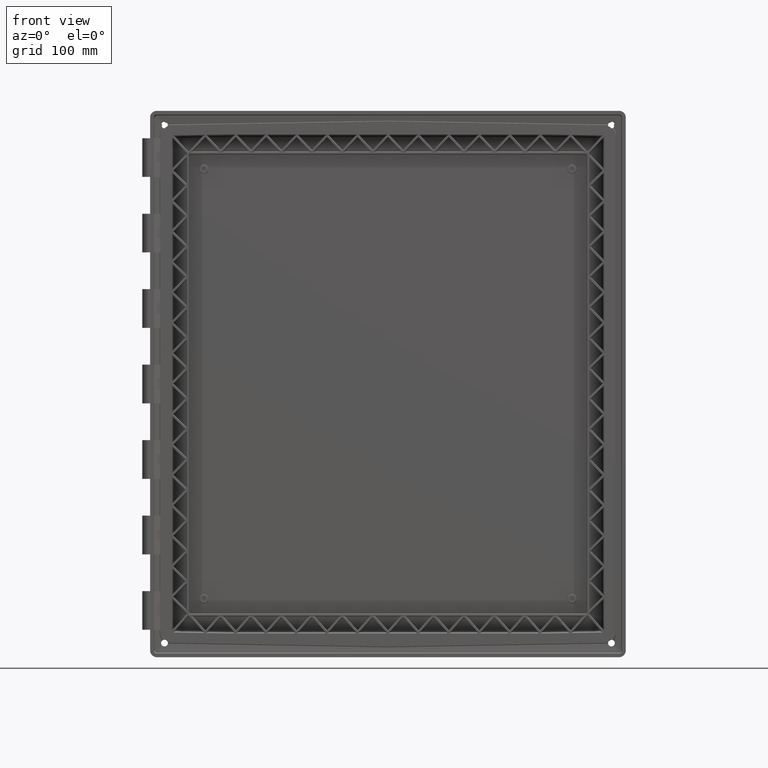
[diagram: clean part render]
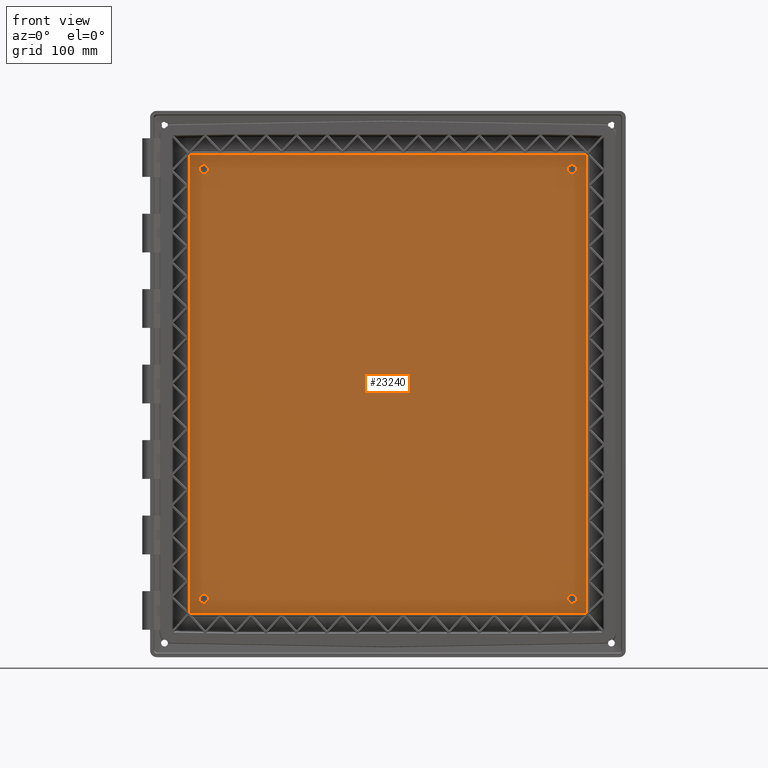
[diagram: same view with one face highlighted and labeled with its STEP entity id]
A machine part, front view. The second image highlights one B-rep face of the part: STEP entity #23240.
In plain terms, the highlighted planar face has unit normal (0, 1, 0).
Its self-contained STEP definition (entity closure, byte-faithful):
#11894 = CARTESIAN_POINT ( 'NONE',  ( 164.5317312209668600, 30.40000000000000200, 189.0218835258104700 ) ) ;
#11895 = CARTESIAN_POINT ( 'NONE',  ( 164.5317312209668600, 30.40000000000000200, -189.0218835258104700 ) ) ;
#11896 = DIRECTION ( 'NONE',  ( -0.0000000000000000000, -0.0000000000000000000, 1.000000000000000000 ) ) ;
#11897 = VECTOR ( 'NONE', #11896, 1000.000000000000000 ) ;
#11898 = CARTESIAN_POINT ( 'NONE',  ( 164.5317312209668600, 30.40000000000000200, 190.5000000000000000 ) ) ;
#11899 = LINE ( 'NONE', #11898, #11897 ) ;
#11910 = CARTESIAN_POINT ( 'NONE',  ( -163.5318835258104600, 30.40000000000000200, 190.0217312209668100 ) ) ;
#11911 = CARTESIAN_POINT ( 'NONE',  ( 163.5318835258105400, 30.40000000000000200, 190.0217312209668100 ) ) ;
#11912 = DIRECTION ( 'NONE',  ( -1.000000000000000000, -0.0000000000000000000, -0.0000000000000000000 ) ) ;
#11913 = VECTOR ( 'NONE', #11912, 1000.000000000000000 ) ;
#11914 = CARTESIAN_POINT ( 'NONE',  ( -165.0100000000000500, 30.40000000000000200, 190.0217312209668100 ) ) ;
#11918 = LINE ( 'NONE', #11914, #11913 ) ;
#11965 = CARTESIAN_POINT ( 'NONE',  ( -164.5317312209668600, 30.40000000000000200, 189.0218835258104400 ) ) ;
#11966 = DIRECTION ( 'NONE',  ( 0.0000000000000000000, -0.0000000000000000000, -1.000000000000000000 ) ) ;
#11967 = VECTOR ( 'NONE', #11966, 1000.000000000000000 ) ;
#11968 = CARTESIAN_POINT ( 'NONE',  ( -164.5317312209668600, 30.40000000000000200, 190.5000000000000000 ) ) ;
#11969 = LINE ( 'NONE', #11968, #11967 ) ;
#11970 = CARTESIAN_POINT ( 'NONE',  ( -164.5317312209668600, 30.40000000000000200, -189.0218835258104100 ) ) ;
#12003 = CARTESIAN_POINT ( 'NONE',  ( 163.5318835258104300, 30.40000000000000200, -190.0217312209668100 ) ) ;
#12004 = CARTESIAN_POINT ( 'NONE',  ( -163.5318835258104600, 30.40000000000000200, -190.0217312209668100 ) ) ;
#12005 = DIRECTION ( 'NONE',  ( 1.000000000000000000, -0.0000000000000000000, -0.0000000000000000000 ) ) ;
#12006 = VECTOR ( 'NONE', #12005, 1000.000000000000000 ) ;
#12007 = CARTESIAN_POINT ( 'NONE',  ( -165.0100000000000500, 30.40000000000000200, -190.0217312209668100 ) ) ;
#12008 = LINE ( 'NONE', #12007, #12006 ) ;
#12182 = DIRECTION ( 'NONE',  ( 0.0000000000000000000, 0.0000000000000000000, 1.000000000000000000 ) ) ;
#12183 = DIRECTION ( 'NONE',  ( -0.0000000000000000000, -1.000000000000000000, -0.0000000000000000000 ) ) ;
#12184 = CARTESIAN_POINT ( 'NONE',  ( 152.3999999999999500, 30.40000000000000200, 177.8000000000000100 ) ) ;
#12185 = AXIS2_PLACEMENT_3D ( 'NONE', #12184, #12183, #12182 ) ;
#12190 = CIRCLE ( 'NONE', #12185, 3.750000000000003600 ) ;
#12249 = CARTESIAN_POINT ( 'NONE',  ( -164.5317312209668600, 30.40000000000000200, 189.0218835258104400 ) ) ;
#12250 = CARTESIAN_POINT ( 'NONE',  ( -164.5317312209668600, 30.40000000000000600, 189.6076176861269300 ) ) ;
#12251 = CARTESIAN_POINT ( 'NONE',  ( -164.1176176861269500, 30.40000000000000600, 190.0217312209668700 ) ) ;
#12252 = CARTESIAN_POINT ( 'NONE',  ( -163.5318835258104600, 30.40000000000000200, 190.0217312209668100 ) ) ;
#12253 =( BOUNDED_CURVE ( )  B_SPLINE_CURVE ( 3, ( #12252, #12251, #12250, #12249 ),
 .UNSPECIFIED., .F., .T. ) 
 B_SPLINE_CURVE_WITH_KNOTS ( ( 4, 4 ),
 ( 2.356346783439908300, 3.926838523739677900 ),
 .UNSPECIFIED. ) 
 CURVE ( )  GEOMETRIC_REPRESENTATION_ITEM ( )  RATIONAL_B_SPLINE_CURVE ( ( 1.000000000000000000, 0.8048096403827773600, 0.8048096403827773600, 1.000000000000000000 ) ) 
 REPRESENTATION_ITEM ( '' )  );
#12263 =( BOUNDED_CURVE ( )  B_SPLINE_CURVE ( 3, ( #12303, #12302, #12301, #12300 ),
 .UNSPECIFIED., .F., .T. ) 
 B_SPLINE_CURVE_WITH_KNOTS ( ( 4, 4 ),
 ( 2.356346783439935900, 3.926838523739650400 ),
 .UNSPECIFIED. ) 
 CURVE ( )  GEOMETRIC_REPRESENTATION_ITEM ( )  RATIONAL_B_SPLINE_CURVE ( ( 1.000000000000000000, 0.8048096403827902400, 0.8048096403827902400, 1.000000000000000000 ) ) 
 REPRESENTATION_ITEM ( '' )  );
#12264 = CARTESIAN_POINT ( 'NONE',  ( 164.5317312209668600, 30.40000000000000200, -189.0218835258104700 ) ) ;
#12265 = CARTESIAN_POINT ( 'NONE',  ( 164.5317312209668300, 30.39999999999999900, -189.6076176861269600 ) ) ;
#12266 = CARTESIAN_POINT ( 'NONE',  ( 164.1176176861269800, 30.39999999999999900, -190.0217312209669000 ) ) ;
#12267 = CARTESIAN_POINT ( 'NONE',  ( 163.5318835258104300, 30.40000000000000200, -190.0217312209668100 ) ) ;
#12268 =( BOUNDED_CURVE ( )  B_SPLINE_CURVE ( 3, ( #12267, #12266, #12265, #12264 ),
 .UNSPECIFIED., .F., .T. ) 
 B_SPLINE_CURVE_WITH_KNOTS ( ( 4, 4 ),
 ( 2.356346783439880400, 3.926838523739677900 ),
 .UNSPECIFIED. ) 
 CURVE ( )  GEOMETRIC_REPRESENTATION_ITEM ( )  RATIONAL_B_SPLINE_CURVE ( ( 1.000000000000000000, 0.8048096403827707000, 0.8048096403827707000, 1.000000000000000000 ) ) 
 REPRESENTATION_ITEM ( '' )  );
#12269 = CARTESIAN_POINT ( 'NONE',  ( -163.5318835258104600, 30.40000000000000200, -190.0217312209668100 ) ) ;
#12270 = CARTESIAN_POINT ( 'NONE',  ( -164.1176176861270100, 30.39999999999999900, -190.0217312209668100 ) ) ;
#12271 = CARTESIAN_POINT ( 'NONE',  ( -164.5317312209668900, 30.39999999999999900, -189.6076176861269300 ) ) ;
#12272 = CARTESIAN_POINT ( 'NONE',  ( -164.5317312209668600, 30.40000000000000200, -189.0218835258104100 ) ) ;
#12273 =( BOUNDED_CURVE ( )  B_SPLINE_CURVE ( 3, ( #12272, #12271, #12270, #12269 ),
 .UNSPECIFIED., .F., .F. ) 
 B_SPLINE_CURVE_WITH_KNOTS ( ( 4, 4 ),
 ( 2.356346783439880400, 3.926838523739677900 ),
 .UNSPECIFIED. ) 
 CURVE ( )  GEOMETRIC_REPRESENTATION_ITEM ( )  RATIONAL_B_SPLINE_CURVE ( ( 1.000000000000000000, 0.8048096403827707000, 0.8048096403827707000, 1.000000000000000000 ) ) 
 REPRESENTATION_ITEM ( '' )  );
#12274 = DIRECTION ( 'NONE',  ( 0.0000000000000000000, -0.0000000000000000000, 1.000000000000000000 ) ) ;
#12275 = DIRECTION ( 'NONE',  ( 0.0000000000000000000, 1.000000000000000000, 0.0000000000000000000 ) ) ;
#12276 = AXIS2_PLACEMENT_3D ( 'NONE', #12277, #12275, #12274 ) ;
#12277 = CARTESIAN_POINT ( 'NONE',  ( -182.5000000000000000, 30.40000000000000200, 210.0000000000000000 ) ) ;
#12278 = PLANE ( 'NONE',  #12276 ) ;
#12279 = FACE_BOUND ( 'NONE', #23216, .T. ) ;
#12280 = FACE_BOUND ( 'NONE', #23213, .T. ) ;
#12281 = FACE_BOUND ( 'NONE', #23210, .T. ) ;
#12282 = FACE_OUTER_BOUND ( 'NONE', #23243, .T. ) ;
#12283 = FACE_BOUND ( 'NONE', #23241, .T. ) ;
#12284 = DIRECTION ( 'NONE',  ( 0.0000000000000000000, 0.0000000000000000000, 1.000000000000000000 ) ) ;
#12285 = DIRECTION ( 'NONE',  ( -0.0000000000000000000, -1.000000000000000000, -0.0000000000000000000 ) ) ;
#12286 = CARTESIAN_POINT ( 'NONE',  ( -152.4000000000000600, 30.40000000000000200, 177.7999999999999500 ) ) ;
#12287 = AXIS2_PLACEMENT_3D ( 'NONE', #12286, #12285, #12284 ) ;
#12292 = CIRCLE ( 'NONE', #12287, 3.750000000000003600 ) ;
#12295 = DIRECTION ( 'NONE',  ( 0.0000000000000000000, 0.0000000000000000000, 1.000000000000000000 ) ) ;
#12296 = DIRECTION ( 'NONE',  ( -0.0000000000000000000, -1.000000000000000000, -0.0000000000000000000 ) ) ;
#12297 = CARTESIAN_POINT ( 'NONE',  ( 152.3999999999999500, 30.40000000000000200, -177.8000000000000100 ) ) ;
#12298 = AXIS2_PLACEMENT_3D ( 'NONE', #12297, #12296, #12295 ) ;
#12299 = CIRCLE ( 'NONE', #12298, 3.750000000000003600 ) ;
#12300 = CARTESIAN_POINT ( 'NONE',  ( 163.5318835258105400, 30.40000000000000200, 190.0217312209668100 ) ) ;
#12301 = CARTESIAN_POINT ( 'NONE',  ( 164.1176176861270100, 30.40000000000000200, 190.0217312209668100 ) ) ;
#12302 = CARTESIAN_POINT ( 'NONE',  ( 164.5317312209668900, 30.40000000000000200, 189.6076176861269300 ) ) ;
#12303 = CARTESIAN_POINT ( 'NONE',  ( 164.5317312209668600, 30.40000000000000200, 189.0218835258104700 ) ) ;
#12332 = DIRECTION ( 'NONE',  ( 0.0000000000000000000, 0.0000000000000000000, 1.000000000000000000 ) ) ;
#12333 = DIRECTION ( 'NONE',  ( -0.0000000000000000000, -1.000000000000000000, -0.0000000000000000000 ) ) ;
#12334 = CARTESIAN_POINT ( 'NONE',  ( -152.3999999999998900, 30.40000000000000200, -177.8000000000000400 ) ) ;
#12335 = AXIS2_PLACEMENT_3D ( 'NONE', #12334, #12333, #12332 ) ;
#12336 = CIRCLE ( 'NONE', #12335, 3.750000000000003600 ) ;
#17382 = VERTEX_POINT ( 'NONE', #28995 ) ;
#17385 = VERTEX_POINT ( 'NONE', #28992 ) ;
#17387 = VERTEX_POINT ( 'NONE', #28987 ) ;
#17389 = EDGE_CURVE ( 'NONE', #17461, #17385, #28986, .T. ) ;
#17396 = VERTEX_POINT ( 'NONE', #28974 ) ;
#17402 = VERTEX_POINT ( 'NONE', #29025 ) ;
#17406 = EDGE_CURVE ( 'NONE', #17402, #17396, #29019, .T. ) ;
#17441 = EDGE_CURVE ( 'NONE', #17387, #17459, #29088, .T. ) ;
#17442 = VERTEX_POINT ( 'NONE', #29083 ) ;
#17459 = VERTEX_POINT ( 'NONE', #29117 ) ;
#17460 = EDGE_CURVE ( 'NONE', #17382, #17442, #29116, .T. ) ;
#17461 = VERTEX_POINT ( 'NONE', #29111 ) ;
#22982 = EDGE_CURVE ( 'NONE', #22983, #22984, #11899, .T. ) ;
#22983 = VERTEX_POINT ( 'NONE', #11895 ) ;
#22984 = VERTEX_POINT ( 'NONE', #11894 ) ;
#23001 = EDGE_CURVE ( 'NONE', #23002, #23003, #11918, .T. ) ;
#23002 = VERTEX_POINT ( 'NONE', #11911 ) ;
#23003 = VERTEX_POINT ( 'NONE', #11910 ) ;
#23028 = VERTEX_POINT ( 'NONE', #11970 ) ;
#23030 = EDGE_CURVE ( 'NONE', #23031, #23028, #11969, .T. ) ;
#23031 = VERTEX_POINT ( 'NONE', #11965 ) ;
#23042 = EDGE_CURVE ( 'NONE', #23043, #23044, #12008, .T. ) ;
#23043 = VERTEX_POINT ( 'NONE', #12004 ) ;
#23044 = VERTEX_POINT ( 'NONE', #12003 ) ;
#23174 = EDGE_CURVE ( 'NONE', #17459, #17387, #12190, .T. ) ;
#23207 = ORIENTED_EDGE ( 'NONE', *, *, #23001, .T. ) ;
#23208 = ORIENTED_EDGE ( 'NONE', *, *, #23209, .T. ) ;
#23209 = EDGE_CURVE ( 'NONE', #23003, #23031, #12253, .T. ) ;
#23210 = EDGE_LOOP ( 'NONE', ( #23211, #23212 ) ) ;
#23211 = ORIENTED_EDGE ( 'NONE', *, *, #23244, .F. ) ;
#23212 = ORIENTED_EDGE ( 'NONE', *, *, #17389, .F. ) ;
#23213 = EDGE_LOOP ( 'NONE', ( #23214, #23215 ) ) ;
#23214 = ORIENTED_EDGE ( 'NONE', *, *, #23174, .F. ) ;
#23215 = ORIENTED_EDGE ( 'NONE', *, *, #17441, .F. ) ;
#23216 = EDGE_LOOP ( 'NONE', ( #23217, #23218 ) ) ;
#23217 = ORIENTED_EDGE ( 'NONE', *, *, #23239, .F. ) ;
#23218 = ORIENTED_EDGE ( 'NONE', *, *, #17406, .F. ) ;
#23220 = ORIENTED_EDGE ( 'NONE', *, *, #17460, .F. ) ;
#23221 = ORIENTED_EDGE ( 'NONE', *, *, #23030, .T. ) ;
#23222 = ORIENTED_EDGE ( 'NONE', *, *, #23223, .T. ) ;
#23223 = EDGE_CURVE ( 'NONE', #23028, #23043, #12273, .T. ) ;
#23224 = ORIENTED_EDGE ( 'NONE', *, *, #23042, .T. ) ;
#23225 = ORIENTED_EDGE ( 'NONE', *, *, #23226, .T. ) ;
#23226 = EDGE_CURVE ( 'NONE', #23044, #22983, #12268, .T. ) ;
#23227 = ORIENTED_EDGE ( 'NONE', *, *, #22982, .T. ) ;
#23228 = ORIENTED_EDGE ( 'NONE', *, *, #23229, .T. ) ;
#23229 = EDGE_CURVE ( 'NONE', #22984, #23002, #12263, .T. ) ;
#23232 = EDGE_CURVE ( 'NONE', #17442, #17382, #12299, .T. ) ;
#23239 = EDGE_CURVE ( 'NONE', #17396, #17402, #12292, .T. ) ;
#23240 = ADVANCED_FACE ( 'NONE', ( #12283, #12282, #12281, #12280, #12279 ), #12278, .F. ) ;
#23241 = EDGE_LOOP ( 'NONE', ( #23242, #23220 ) ) ;
#23242 = ORIENTED_EDGE ( 'NONE', *, *, #23232, .F. ) ;
#23243 = EDGE_LOOP ( 'NONE', ( #23221, #23222, #23224, #23225, #23227, #23228, #23207, #23208 ) ) ;
#23244 = EDGE_CURVE ( 'NONE', #17385, #17461, #12336, .T. ) ;
#28974 = CARTESIAN_POINT ( 'NONE',  ( -152.4000000000000600, 30.40000000000000200, 174.0499999999999500 ) ) ;
#28982 = DIRECTION ( 'NONE',  ( 0.0000000000000000000, 0.0000000000000000000, 1.000000000000000000 ) ) ;
#28983 = DIRECTION ( 'NONE',  ( -0.0000000000000000000, -1.000000000000000000, -0.0000000000000000000 ) ) ;
#28984 = CARTESIAN_POINT ( 'NONE',  ( -152.3999999999998900, 30.40000000000000200, -177.8000000000000400 ) ) ;
#28985 = AXIS2_PLACEMENT_3D ( 'NONE', #28984, #28983, #28982 ) ;
#28986 = CIRCLE ( 'NONE', #28985, 3.750000000000003600 ) ;
#28987 = CARTESIAN_POINT ( 'NONE',  ( 152.3999999999999500, 30.40000000000000200, 181.5500000000000100 ) ) ;
#28992 = CARTESIAN_POINT ( 'NONE',  ( -152.3999999999998900, 30.40000000000000200, -181.5500000000000400 ) ) ;
#28995 = CARTESIAN_POINT ( 'NONE',  ( 152.3999999999999500, 30.40000000000000200, -174.0500000000000100 ) ) ;
#29015 = DIRECTION ( 'NONE',  ( 0.0000000000000000000, 0.0000000000000000000, 1.000000000000000000 ) ) ;
#29016 = DIRECTION ( 'NONE',  ( -0.0000000000000000000, -1.000000000000000000, -0.0000000000000000000 ) ) ;
#29017 = CARTESIAN_POINT ( 'NONE',  ( -152.4000000000000600, 30.40000000000000200, 177.7999999999999500 ) ) ;
#29018 = AXIS2_PLACEMENT_3D ( 'NONE', #29017, #29016, #29015 ) ;
#29019 = CIRCLE ( 'NONE', #29018, 3.750000000000003600 ) ;
#29025 = CARTESIAN_POINT ( 'NONE',  ( -152.4000000000000600, 30.40000000000000200, 181.5499999999999500 ) ) ;
#29083 = CARTESIAN_POINT ( 'NONE',  ( 152.3999999999999500, 30.40000000000000200, -181.5500000000000100 ) ) ;
#29084 = DIRECTION ( 'NONE',  ( 0.0000000000000000000, 0.0000000000000000000, 1.000000000000000000 ) ) ;
#29085 = DIRECTION ( 'NONE',  ( -0.0000000000000000000, -1.000000000000000000, -0.0000000000000000000 ) ) ;
#29086 = CARTESIAN_POINT ( 'NONE',  ( 152.3999999999999500, 30.40000000000000200, 177.8000000000000100 ) ) ;
#29087 = AXIS2_PLACEMENT_3D ( 'NONE', #29086, #29085, #29084 ) ;
#29088 = CIRCLE ( 'NONE', #29087, 3.750000000000003600 ) ;
#29111 = CARTESIAN_POINT ( 'NONE',  ( -152.3999999999998900, 30.40000000000000200, -174.0500000000000400 ) ) ;
#29112 = DIRECTION ( 'NONE',  ( 0.0000000000000000000, 0.0000000000000000000, 1.000000000000000000 ) ) ;
#29113 = DIRECTION ( 'NONE',  ( -0.0000000000000000000, -1.000000000000000000, -0.0000000000000000000 ) ) ;
#29114 = CARTESIAN_POINT ( 'NONE',  ( 152.3999999999999500, 30.40000000000000200, -177.8000000000000100 ) ) ;
#29115 = AXIS2_PLACEMENT_3D ( 'NONE', #29114, #29113, #29112 ) ;
#29116 = CIRCLE ( 'NONE', #29115, 3.750000000000003600 ) ;
#29117 = CARTESIAN_POINT ( 'NONE',  ( 152.3999999999999500, 30.40000000000000200, 174.0500000000000100 ) ) ;